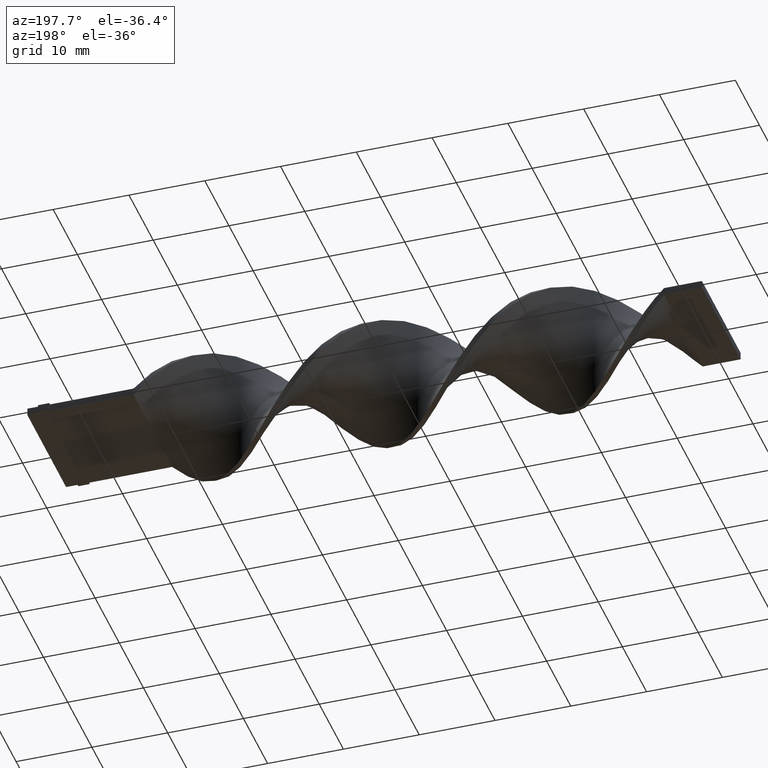
[diagram: clean part render]
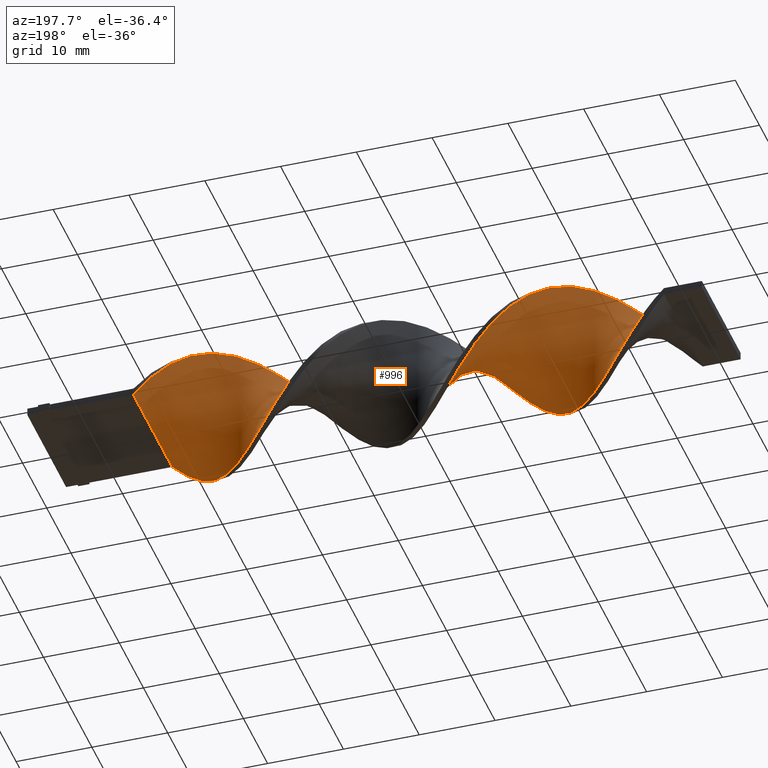
[diagram: same view with one face highlighted and labeled with its STEP entity id]
A machine part, auxiliary view. The second image highlights one B-rep face of the part: STEP entity #996.
In plain terms, the highlighted face is a freeform B-spline surface patch.
Its self-contained STEP definition (entity closure, byte-faithful):
#4 = CARTESIAN_POINT ( 'NONE',  ( -69.64102564102564941, -2.369330974997580164, -7.657432385004585562 ) ) ;
#5 = CARTESIAN_POINT ( 'NONE',  ( -44.51282051282051100, -4.956009906796077225, -6.299838553783672523 ) ) ;
#6 =( BOUNDED_CURVE ( )  B_SPLINE_CURVE ( 2, ( #1060, #1177, #458, #1305, #667, #1043, #75, #1443, #1298, #930, #185, #1552, #1533, #685, #1412, #180, #940, #296, #331, #1546, #679, #814, #1189, #1049, #62, #790, #574, #1055, #310, #1311, #49, #795, #1560, #1293, #175, #920, #1422, #1318, #1181, #557, #68, #444, #663, #449, #925, #799, #566, #320, #1196, #546, #805, #1072, #1240, #695, #95, #1215, #726, #593, #237, #1226, #972, #228, #1205, #734, #827, #707, #352, #102, #1603, #471, #1339, #119, #848, #580, #1092, #1460, #863, #857, #1120 ),
 .UNSPECIFIED., .F., .T. ) 
 B_SPLINE_CURVE_WITH_KNOTS ( ( 3, 2, 2, 2, 2, 2, 2, 2, 2, 2, 2, 2, 2, 2, 2, 2, 2, 2, 2, 2, 2, 2, 2, 2, 2, 2, 2, 2, 2, 2, 2, 2, 2, 2, 2, 2, 2, 2, 2, 3 ),
 ( 0.000000000000000000, 0.01923076923076923184, 0.03846153846153846367, 0.05769230769230768857, 0.07692307692307692735, 0.09615384615384615918, 0.1153846153846153771, 0.1346153846153846090, 0.1538461538461538547, 0.1730769230769230449, 0.1923076923076923184, 0.2115384615384615363, 0.2307692307692307543, 0.2500000000000000000, 0.2692307692307692180, 0.2884615384615384359, 0.3076923076923077094, 0.3269230769230769273, 0.3461538461538460898, 0.3653846153846153633, 0.3846153846153846367, 0.4038461538461539102, 0.4230769230769230727, 0.4423076923076922906, 0.4615384615384615086, 0.4807692307692307820, 0.5000000000000000000, 0.5192307692307692735, 0.5384615384615384359, 0.5576923076923077094, 0.5769230769230768718, 0.5961538461538461453, 0.6153846153846154188, 0.6346153846153845812, 0.6538461538461538547, 0.6730769230769230171, 0.6923076923076921796, 0.7115384615384615641, 0.7307692307692307265, 0.7500000000000000000 ),
 .UNSPECIFIED. ) 
 CURVE ( )  GEOMETRIC_REPRESENTATION_ITEM ( )  RATIONAL_B_SPLINE_CURVE ( ( 1.000000000000000000, 0.9927088740980539727, 1.000000000000000000, 0.9927088740980539727, 1.000000000000000000, 0.9927088740980539727, 1.000000000000000000, 0.9927088740980539727, 1.000000000000000000, 0.9927088740980539727, 1.000000000000000000, 0.9927088740980539727, 1.000000000000000000, 0.9927088740980539727, 1.000000000000000000, 0.9927088740980539727, 1.000000000000000000, 0.9927088740980539727, 1.000000000000000000, 0.9927088740980539727, 1.000000000000000000, 0.9927088740980539727, 1.000000000000000000, 0.9927088740980539727, 1.000000000000000000, 0.9927088740980539727, 1.000000000000000000, 0.9927088740980539727, 1.000000000000000000, 0.9927088740980539727, 1.000000000000000000, 0.9927088740980539727, 1.000000000000000000, 0.9927088740980539727, 1.000000000000000000, 0.9927088740980539727, 1.000000000000000000, 0.9927088740980539727, 1.000000000000000000, 0.9927088740980539727, 1.000000000000000000, 0.9927088740980539727, 1.000000000000000000, 0.9927088740980539727, 1.000000000000000000, 0.9927088740980539727, 1.000000000000000000, 0.9927088740980539727, 1.000000000000000000, 0.9927088740980539727, 1.000000000000000000, 0.9927088740980539727, 1.000000000000000000, 0.9927088740980539727, 1.000000000000000000, 0.9927088740980539727, 1.000000000000000000, 0.9927088740980539727, 1.000000000000000000, 0.9927088740980539727, 1.000000000000000000, 0.9927088740980539727, 1.000000000000000000, 0.9927088740980539727, 1.000000000000000000, 0.9927088740980539727, 1.000000000000000000, 0.9927088740980539727, 1.000000000000000000, 0.9927088740980539727, 1.000000000000000000, 0.9927088740980539727, 1.000000000000000000, 0.9927088740980539727, 1.000000000000000000, 0.9927088740980539727, 1.000000000000000000, 0.9927088740980539727, 1.000000000000000000 ) ) 
 REPRESENTATION_ITEM ( '' )  );
#15 = CARTESIAN_POINT ( 'NONE',  ( -67.84615384615385381, 4.956009906796073672, 6.299838553783672523 ) ) ;
#24 = CARTESIAN_POINT ( 'NONE',  ( -64.25641025641024839, -6.851286619203796668, -4.160513389176752952 ) ) ;
#25 = CARTESIAN_POINT ( 'NONE',  ( -84.00000000000000000, -8.000000000000001776, 0.5000000000000009992 ) ) ;
#31 = CARTESIAN_POINT ( 'NONE',  ( -72.33333333333332860, 0.5036723384328395392, -8.058757414925462825 ) ) ;
#33 = CARTESIAN_POINT ( 'NONE',  ( -78.61538461538461320, -5.656524656248411276, 5.679236640011914083 ) ) ;
#39 = CARTESIAN_POINT ( 'NONE',  ( -76.82051282051281760, 4.956009906796071895, -6.299838553783673412 ) ) ;
#49 = CARTESIAN_POINT ( 'NONE',  ( -40.92307692307691980, 6.851286619203793116, 4.160513389176752952 ) ) ;
#59 = CARTESIAN_POINT ( 'NONE',  ( -51.69230769230769340, 2.369330974997576167, -7.657432385004586450 ) ) ;
#62 = CARTESIAN_POINT ( 'NONE',  ( -35.53846153846153300, 7.887192371552193215, -1.429054405587439014 ) ) ;
#65 = CARTESIAN_POINT ( 'NONE',  ( -19.38461538461538325, 6.319647314489206025, 4.930725891840810782 ) ) ;
#68 = CARTESIAN_POINT ( 'NONE',  ( -49.89743589743589069, -1.460647879091607093, 7.881402652656771757 ) ) ;
#70 = CARTESIAN_POINT ( 'NONE',  ( -31.05128205128205821, -4.966940480229637522, 6.366063081919212330 ) ) ;
#75 = CARTESIAN_POINT ( 'NONE',  ( -19.38461538461538325, -5.656524656248413940, -5.679236640011911419 ) ) ;
#77 = CARTESIAN_POINT ( 'NONE',  ( -42.71794871794872250, -6.319647314489210466, -4.930725891840809894 ) ) ;
#88 = CARTESIAN_POINT ( 'NONE',  ( -62.46153846153845990, 7.887192371552193215, 1.429054405587435905 ) ) ;
#95 = CARTESIAN_POINT ( 'NONE',  ( -62.46153846153845990, -7.647876707264638974, -2.399996223013487917 ) ) ;
#97 = CARTESIAN_POINT ( 'NONE',  ( -82.20512820512820440, -7.647876707264638085, 2.399996223013490582 ) ) ;
#98 = CARTESIAN_POINT ( 'NONE',  ( -22.07692307692308020, 4.191071015615603024, 6.901607105536022857 ) ) ;
#102 = CARTESIAN_POINT ( 'NONE',  ( -74.12820512820510999, 2.417623419750379643, -7.704047890388078912 ) ) ;
#106 = CARTESIAN_POINT ( 'NONE',  ( -66.05128205128204399, 6.319647314489206025, 4.930725891840810782 ) ) ;
#107 = CARTESIAN_POINT ( 'NONE',  ( -22.97435897435897090, 3.304347217682992444, 7.302827497962049996 ) ) ;
#113 = CARTESIAN_POINT ( 'NONE',  ( -44.51282051282051100, 4.133026040902417542, 6.867903300514829112 ) ) ;
#114 = CARTESIAN_POINT ( 'NONE',  ( -40.92307692307691980, -7.316009791247564564, -3.275057363523542264 ) ) ;
#119 = CARTESIAN_POINT ( 'NONE',  ( -77.71794871794874382, 5.720948797976543432, -5.698070002031325743 ) ) ;
#122 = CARTESIAN_POINT ( 'NONE',  ( -47.20512820512820440, 1.439550348419954995, 7.945121250898724341 ) ) ;
#123 = CARTESIAN_POINT ( 'NONE',  ( -57.07692307692307310, 6.851286619203790451, -4.160513389176759169 ) ) ;
#125 = CARTESIAN_POINT ( 'NONE',  ( -13.99999999999999822, 7.999999999999998224, -0.5000000000000000000 ) ) ;
#129 = CARTESIAN_POINT ( 'NONE',  ( -37.33333333333332860, 7.999999999999998224, 0.4999999999999990563 ) ) ;
#135 = CARTESIAN_POINT ( 'NONE',  ( -80.41025641025640880, 7.316009791247561012, -3.275057363523544041 ) ) ;
#144 = CARTESIAN_POINT ( 'NONE',  ( -84.00000000000000000, 7.999999999999998224, 0.4999999999999990563 ) ) ;
#151 = CARTESIAN_POINT ( 'NONE',  ( -13.99999999999999645, -8.000000000000001776, -0.5000000000000000000 ) ) ;
#158 = CARTESIAN_POINT ( 'NONE',  ( -65.15384615384614619, -6.346108832267186806, -4.992410198104614061 ) ) ;
#160 = CARTESIAN_POINT ( 'NONE',  ( -81.30769230769232081, -7.356464406140405643, 3.328616580248894508 ) ) ;
#162 =( BOUNDED_CURVE ( )  B_SPLINE_CURVE ( 2, ( #860, #1099, #1109, #738, #232, #842, #1465, #1587, #988, #98, #107, #490, #1361, #484, #1487, #240, #720, #1237, #1346, #373, #1124, #1245, #1597, #225, #853, #509, #1219, #1353, #1500, #627, #114, #390, #1336, #979, #5, #596, #1231, #603, #1479, #366, #1132, #381, #712, #610, #213, #1118, #1607, #495, #123, #619, #1613, #501, #994, #1492, #866, #1370, #250, #749, #1254, #1018, #15, #169, #634, #893, #291, #1378, #764, #267, #1402, #1268, #907, #275, #33, #1408, #525, #160, #1009, #1509, #900 ),
 .UNSPECIFIED., .F., .T. ) 
 B_SPLINE_CURVE_WITH_KNOTS ( ( 3, 2, 2, 2, 2, 2, 2, 2, 2, 2, 2, 2, 2, 2, 2, 2, 2, 2, 2, 2, 2, 2, 2, 2, 2, 2, 2, 2, 2, 2, 2, 2, 2, 2, 2, 2, 2, 2, 2, 3 ),
 ( 0.000000000000000000, 0.01923076923076923184, 0.03846153846153846367, 0.05769230769230768857, 0.07692307692307692735, 0.09615384615384615918, 0.1153846153846153771, 0.1346153846153846090, 0.1538461538461538547, 0.1730769230769230449, 0.1923076923076923184, 0.2115384615384615363, 0.2307692307692307543, 0.2500000000000000000, 0.2692307692307692180, 0.2884615384615384359, 0.3076923076923077094, 0.3269230769230769273, 0.3461538461538460898, 0.3653846153846153633, 0.3846153846153846367, 0.4038461538461539102, 0.4230769230769230727, 0.4423076923076922906, 0.4615384615384615086, 0.4807692307692307820, 0.5000000000000000000, 0.5192307692307692735, 0.5384615384615384359, 0.5576923076923077094, 0.5769230769230768718, 0.5961538461538461453, 0.6153846153846154188, 0.6346153846153845812, 0.6538461538461538547, 0.6730769230769230171, 0.6923076923076921796, 0.7115384615384615641, 0.7307692307692307265, 0.7500000000000000000 ),
 .UNSPECIFIED. ) 
 CURVE ( )  GEOMETRIC_REPRESENTATION_ITEM ( )  RATIONAL_B_SPLINE_CURVE ( ( 1.000000000000000000, 0.9927088740980539727, 1.000000000000000000, 0.9927088740980539727, 1.000000000000000000, 0.9927088740980539727, 1.000000000000000000, 0.9927088740980539727, 1.000000000000000000, 0.9927088740980539727, 1.000000000000000000, 0.9927088740980539727, 1.000000000000000000, 0.9927088740980539727, 1.000000000000000000, 0.9927088740980539727, 1.000000000000000000, 0.9927088740980539727, 1.000000000000000000, 0.9927088740980539727, 1.000000000000000000, 0.9927088740980539727, 1.000000000000000000, 0.9927088740980539727, 1.000000000000000000, 0.9927088740980539727, 1.000000000000000000, 0.9927088740980539727, 1.000000000000000000, 0.9927088740980539727, 1.000000000000000000, 0.9927088740980539727, 1.000000000000000000, 0.9927088740980539727, 1.000000000000000000, 0.9927088740980539727, 1.000000000000000000, 0.9927088740980539727, 1.000000000000000000, 0.9927088740980539727, 1.000000000000000000, 0.9927088740980539727, 1.000000000000000000, 0.9927088740980539727, 1.000000000000000000, 0.9927088740980539727, 1.000000000000000000, 0.9927088740980539727, 1.000000000000000000, 0.9927088740980539727, 1.000000000000000000, 0.9927088740980539727, 1.000000000000000000, 0.9927088740980539727, 1.000000000000000000, 0.9927088740980539727, 1.000000000000000000, 0.9927088740980539727, 1.000000000000000000, 0.9927088740980539727, 1.000000000000000000, 0.9927088740980539727, 1.000000000000000000, 0.9927088740980539727, 1.000000000000000000, 0.9927088740980539727, 1.000000000000000000, 0.9927088740980539727, 1.000000000000000000, 0.9927088740980539727, 1.000000000000000000, 0.9927088740980539727, 1.000000000000000000, 0.9927088740980539727, 1.000000000000000000, 0.9927088740980539727, 1.000000000000000000, 0.9927088740980539727, 1.000000000000000000 ) ) 
 REPRESENTATION_ITEM ( '' )  );
#169 = CARTESIAN_POINT ( 'NONE',  ( -68.74358974358973740, 4.191071015615603024, 6.901607105536022857 ) ) ;
#175 = CARTESIAN_POINT ( 'NONE',  ( -44.51282051282051100, 4.133026040902417542, 6.867903300514829112 ) ) ;
#177 = CARTESIAN_POINT ( 'NONE',  ( -24.76923076923076650, 1.460647879091611312, 7.881402652656771757 ) ) ;
#180 = CARTESIAN_POINT ( 'NONE',  ( -27.46153846153846345, 2.417623419750379643, -7.704047890388078912 ) ) ;
#182 = CARTESIAN_POINT ( 'NONE',  ( -25.66666666666666785, 0.5036723384328404274, 8.058757414925462825 ) ) ;
#185 = CARTESIAN_POINT ( 'NONE',  ( -22.97435897435897090, -2.369330974997580164, -7.657432385004585562 ) ) ;
#187 = CARTESIAN_POINT ( 'NONE',  ( -43.61538461538461320, -5.720948797976550537, -5.698070002031321302 ) ) ;
#195 = CARTESIAN_POINT ( 'NONE',  ( -37.33333333333332860, -8.000000000000001776, 0.5000000000000009992 ) ) ;
#204 = CARTESIAN_POINT ( 'NONE',  ( -49.00000000000000711, -0.5036723384328444242, -8.058757414925462825 ) ) ;
#211 = CARTESIAN_POINT ( 'NONE',  ( -75.92307692307693401, -3.299111601575199781, 7.369743519110448560 ) ) ;
#213 = CARTESIAN_POINT ( 'NONE',  ( -53.48717948717948900, 4.133026040902414877, -6.867903300514830889 ) ) ;
#223 = CARTESIAN_POINT ( 'NONE',  ( -22.07692307692308376, -3.299111601575200670, -7.369743519110448560 ) ) ;
#225 = CARTESIAN_POINT ( 'NONE',  ( -34.64102564102564230, -7.356464406140405643, 3.328616580248894508 ) ) ;
#228 = CARTESIAN_POINT ( 'NONE',  ( -68.74358974358973740, -3.299111601575200670, -7.369743519110448560 ) ) ;
#231 = CARTESIAN_POINT ( 'NONE',  ( -42.71794871794872250, 5.656524656248411276, 5.679236640011910531 ) ) ;
#232 = CARTESIAN_POINT ( 'NONE',  ( -17.58974358974358765, 7.316009791247561012, 3.275057363523542708 ) ) ;
#237 = CARTESIAN_POINT ( 'NONE',  ( -66.05128205128204399, -5.656524656248413940, -5.679236640011911419 ) ) ;
#239 = CARTESIAN_POINT ( 'NONE',  ( -29.25641025641025905, 4.191071015615602136, -6.901607105536023745 ) ) ;
#240 = CARTESIAN_POINT ( 'NONE',  ( -27.46153846153846345, -1.439550348419957437, 7.945121250898725229 ) ) ;
#248 = CARTESIAN_POINT ( 'NONE',  ( -22.97435897435897090, -2.369330974997580164, -7.657432385004585562 ) ) ;
#250 = CARTESIAN_POINT ( 'NONE',  ( -64.25641025641024839, 7.316009791247561012, 3.275057363523542708 ) ) ;
#257 = CARTESIAN_POINT ( 'NONE',  ( -66.94871794871794179, -4.966940480229640187, -6.366063081919210553 ) ) ;
#259 = VERTEX_POINT ( 'NONE', #1579 ) ;
#266 = CARTESIAN_POINT ( 'NONE',  ( -73.23076923076924061, 1.460647879091608647, -7.881402652656771757 ) ) ;
#267 = CARTESIAN_POINT ( 'NONE',  ( -74.12820512820510999, -1.439550348419957437, 7.945121250898725229 ) ) ;
#273 = CARTESIAN_POINT ( 'NONE',  ( -75.92307692307693401, 4.191071015615602136, -6.901607105536023745 ) ) ;
#275 = CARTESIAN_POINT ( 'NONE',  ( -77.71794871794874382, -4.966940480229637522, 6.366063081919211442 ) ) ;
#281 = CARTESIAN_POINT ( 'NONE',  ( -57.07692307692307310, -7.316009791247561900, 3.275057363523548926 ) ) ;
#288 = CARTESIAN_POINT ( 'NONE',  ( -59.76923076923077360, -8.060710991611131249, 0.4713758657780888761 ) ) ;
#291 = CARTESIAN_POINT ( 'NONE',  ( -71.43589743589743080, 1.460647879091611312, 7.881402652656771757 ) ) ;
#296 = CARTESIAN_POINT ( 'NONE',  ( -29.25641025641025905, 4.191071015615602136, -6.901607105536022857 ) ) ;
#299 = CARTESIAN_POINT ( 'NONE',  ( -61.56410256410256920, 8.060710991611127696, 0.4713758657780842132 ) ) ;
#307 = CARTESIAN_POINT ( 'NONE',  ( -38.23076923076922640, -8.060710991611131249, -0.4713758657780824923 ) ) ;
#310 = CARTESIAN_POINT ( 'NONE',  ( -39.12820512820512420, 7.647876707264636309, 2.399996223013485697 ) ) ;
#313 = CARTESIAN_POINT ( 'NONE',  ( -39.12820512820512420, -7.887192371552196768, -1.429054405587433463 ) ) ;
#320 = CARTESIAN_POINT ( 'NONE',  ( -56.17948717948717530, -6.918345831001868618, 4.163381781650300262 ) ) ;
#324 = CARTESIAN_POINT ( 'NONE',  ( -34.64102564102564230, -7.356464406140407419, 3.328616580248894952 ) ) ;
#331 = CARTESIAN_POINT ( 'NONE',  ( -30.15384615384615330, 4.956009906796071895, -6.299838553783673412 ) ) ;
#336 = CARTESIAN_POINT ( 'NONE',  ( -56.17948717948717530, 6.346108832267182365, -4.992410198104615837 ) ) ;
#346 = CARTESIAN_POINT ( 'NONE',  ( -71.43589743589743080, 1.460647879091611312, 7.881402652656771757 ) ) ;
#352 = CARTESIAN_POINT ( 'NONE',  ( -73.23076923076924061, 1.460647879091608647, -7.881402652656771757 ) ) ;
#355 = CARTESIAN_POINT ( 'NONE',  ( -16.69230769230769695, -7.356464406140408308, -3.328616580248892287 ) ) ;
#365 = CARTESIAN_POINT ( 'NONE',  ( -40.92307692307691980, 6.851286619203793116, 4.160513389176752952 ) ) ;
#366 = CARTESIAN_POINT ( 'NONE',  ( -49.00000000000000000, -0.5036723384328445352, -8.058757414925462825 ) ) ;
#372 = CARTESIAN_POINT ( 'NONE',  ( -77.71794871794872961, -4.966940480229637522, 6.366063081919212330 ) ) ;
#373 = CARTESIAN_POINT ( 'NONE',  ( -31.05128205128205465, -4.966940480229637522, 6.366063081919211442 ) ) ;
#380 = CARTESIAN_POINT ( 'NONE',  ( -84.00000000000000000, -8.000000000000001776, 0.5000000000000009992 ) ) ;
#381 = CARTESIAN_POINT ( 'NONE',  ( -50.79487179487178850, 1.439550348419951442, -7.945121250898727006 ) ) ;
#388 = CARTESIAN_POINT ( 'NONE',  ( -62.46153846153845990, -7.647876707264638974, -2.399996223013487917 ) ) ;
#390 = CARTESIAN_POINT ( 'NONE',  ( -41.82051282051281760, -6.918345831001870394, -4.163381781650297597 ) ) ;
#396 = CARTESIAN_POINT ( 'NONE',  ( -52.58974358974358410, -4.191071015615600359, 6.901607105536026410 ) ) ;
#405 = CARTESIAN_POINT ( 'NONE',  ( -84.00000000000000000, -2.666666666666668739, 0.5000000000000003331 ) ) ;
#413 = CARTESIAN_POINT ( 'NONE',  ( -60.66666666666666430, -8.000000000000001776, -0.5000000000000000000 ) ) ;
#420 = CARTESIAN_POINT ( 'NONE',  ( -66.05128205128204399, -5.656524656248413940, -5.679236640011911419 ) ) ;
#433 = CARTESIAN_POINT ( 'NONE',  ( -64.25641025641024839, 7.316009791247561012, 3.275057363523542708 ) ) ;
#439 = CARTESIAN_POINT ( 'NONE',  ( -29.25641025641025905, -3.299111601575199781, 7.369743519110448560 ) ) ;
#444 = CARTESIAN_POINT ( 'NONE',  ( -50.79487179487178850, -2.417623419750380087, 7.704047890388080688 ) ) ;
#449 = CARTESIAN_POINT ( 'NONE',  ( -52.58974358974359120, -4.191071015615600359, 6.901607105536025522 ) ) ;
#452 = CARTESIAN_POINT ( 'NONE',  ( -22.97435897435897090, 3.304347217682992444, 7.302827497962049996 ) ) ;
#458 = CARTESIAN_POINT ( 'NONE',  ( -15.79487179487179205, -7.647876707264638974, -2.399996223013487917 ) ) ;
#462 = CARTESIAN_POINT ( 'NONE',  ( -15.79487179487179205, 7.887192371552193215, 1.429054405587435905 ) ) ;
#471 = CARTESIAN_POINT ( 'NONE',  ( -75.92307692307691980, 4.191071015615602136, -6.901607105536022857 ) ) ;
#474 = CARTESIAN_POINT ( 'NONE',  ( -50.79487179487178850, -2.417623419750380087, 7.704047890388079800 ) ) ;
#478 = B_SPLINE_CURVE_WITH_KNOTS ( 'NONE', 3,
 ( #25, #405, #771, #1275 ),
 .UNSPECIFIED., .F., .F.,
 ( 4, 4 ),
 ( 0.000000000000000000, 1.000000000000000000 ),
 .UNSPECIFIED. ) ;
#482 = CARTESIAN_POINT ( 'NONE',  ( -78.61538461538461320, -5.656524656248411276, 5.679236640011914083 ) ) ;
#484 = CARTESIAN_POINT ( 'NONE',  ( -25.66666666666666785, 0.5036723384328405384, 8.058757414925462825 ) ) ;
#489 = CARTESIAN_POINT ( 'NONE',  ( -34.64102564102564230, 7.713673751493258735, -2.386732945396789596 ) ) ;
#490 = CARTESIAN_POINT ( 'NONE',  ( -23.87179487179487580, 2.417623419750380531, 7.704047890388078024 ) ) ;
#494 = CARTESIAN_POINT ( 'NONE',  ( -17.58974358974358765, -6.851286619203796668, -4.160513389176752952 ) ) ;
#495 = CARTESIAN_POINT ( 'NONE',  ( -56.17948717948717530, 6.346108832267182365, -4.992410198104615837 ) ) ;
#500 = CARTESIAN_POINT ( 'NONE',  ( -43.61538461538461320, 4.966940480229639299, 6.366063081919208777 ) ) ;
#501 = CARTESIAN_POINT ( 'NONE',  ( -59.76923076923076650, 7.939289008388867863, -1.471375865778089098 ) ) ;
#509 = CARTESIAN_POINT ( 'NONE',  ( -36.43589743589743790, -7.939289008388871416, 1.471375865778087988 ) ) ;
#517 = CARTESIAN_POINT ( 'NONE',  ( -61.56410256410256920, -7.939289008388871416, -1.471375865778084213 ) ) ;
#523 = CARTESIAN_POINT ( 'NONE',  ( -51.69230769230769340, -3.304347217682993332, 7.302827497962050884 ) ) ;
#525 = CARTESIAN_POINT ( 'NONE',  ( -80.41025641025640880, -6.851286619203795780, 4.160513389176754728 ) ) ;
#538 = CARTESIAN_POINT ( 'NONE',  ( -68.74358974358973740, -3.299111601575200670, -7.369743519110448560 ) ) ;
#546 = CARTESIAN_POINT ( 'NONE',  ( -57.97435897435897090, -7.713673751493261399, 2.386732945396790928 ) ) ;
#553 = CARTESIAN_POINT ( 'NONE',  ( -21.17948717948717885, 4.956009906796073672, 6.299838553783672523 ) ) ;
#557 = CARTESIAN_POINT ( 'NONE',  ( -49.00000000000000000, -0.5036723384328414266, 8.058757414925462825 ) ) ;
#561 = CARTESIAN_POINT ( 'NONE',  ( -49.89743589743589069, 0.4679390049935500673, -8.001939332912092695 ) ) ;
#566 = CARTESIAN_POINT ( 'NONE',  ( -55.28205128205128460, -6.319647314489206025, 4.930725891840814334 ) ) ;
#569 = CARTESIAN_POINT ( 'NONE',  ( -36.43589743589743790, -7.939289008388871416, 1.471375865778087988 ) ) ;
#574 = CARTESIAN_POINT ( 'NONE',  ( -37.33333333333332860, 7.999999999999998224, 0.4999999999999990563 ) ) ;
#580 = CARTESIAN_POINT ( 'NONE',  ( -79.51282051282051100, 6.918345831001865065, -4.163381781650299374 ) ) ;
#584 = CARTESIAN_POINT ( 'NONE',  ( -63.35897435897435770, 7.713673751493258735, 2.386732945396786931 ) ) ;
#593 = CARTESIAN_POINT ( 'NONE',  ( -65.15384615384614619, -6.346108832267186806, -4.992410198104614061 ) ) ;
#595 = CARTESIAN_POINT ( 'NONE',  ( -83.10256410256410220, -7.939289008388871416, 1.471375865778087988 ) ) ;
#596 = CARTESIAN_POINT ( 'NONE',  ( -45.41025641025640880, -4.191071015615609241, -6.901607105536020192 ) ) ;
#602 = CARTESIAN_POINT ( 'NONE',  ( -28.35897435897435770, 3.304347217682989779, -7.302827497962051773 ) ) ;
#603 = CARTESIAN_POINT ( 'NONE',  ( -47.20512820512820440, -2.417623419750382752, -7.704047890388078912 ) ) ;
#608 = CARTESIAN_POINT ( 'NONE',  ( -80.41025641025640880, -6.851286619203795780, 4.160513389176754728 ) ) ;
#610 = CARTESIAN_POINT ( 'NONE',  ( -52.58974358974359120, 3.299111601575193120, -7.369743519110449448 ) ) ;
#615 = CARTESIAN_POINT ( 'NONE',  ( -13.99999999999999822, 7.999999999999998224, -0.5000000000000000000 ) ) ;
#617 = CARTESIAN_POINT ( 'NONE',  ( -48.10256410256410220, 0.4679390049935600593, 8.001939332912094471 ) ) ;
#619 = CARTESIAN_POINT ( 'NONE',  ( -57.97435897435897090, 7.356464406140403867, -3.328616580248895396 ) ) ;
#626 = CARTESIAN_POINT ( 'NONE',  ( -46.30769230769230660, 2.369330974997578387, 7.657432385004585562 ) ) ;
#627 = CARTESIAN_POINT ( 'NONE',  ( -40.02564102564102200, -7.713673751493263175, -2.386732945396784711 ) ) ;
#629 = EDGE_CURVE ( 'NONE', #1265, #1121, #1348, .T. ) ;
#634 = CARTESIAN_POINT ( 'NONE',  ( -69.64102564102564941, 3.304347217682992444, 7.302827497962049996 ) ) ;
#649 = CARTESIAN_POINT ( 'NONE',  ( -82.20512820512820440, 7.887192371552193215, -1.429054405587439014 ) ) ;
#663 = CARTESIAN_POINT ( 'NONE',  ( -51.69230769230769340, -3.304347217682993332, 7.302827497962050884 ) ) ;
#667 = CARTESIAN_POINT ( 'NONE',  ( -17.58974358974358765, -6.851286619203796668, -4.160513389176752952 ) ) ;
#669 = CARTESIAN_POINT ( 'NONE',  ( -30.15384615384615330, -4.133026040902419318, 6.867903300514830001 ) ) ;
#679 = CARTESIAN_POINT ( 'NONE',  ( -31.94871794871794535, 6.319647314489203360, -4.930725891840813446 ) ) ;
#682 = CARTESIAN_POINT ( 'NONE',  ( -57.07692307692307310, 6.851286619203790451, -4.160513389176759169 ) ) ;
#685 = CARTESIAN_POINT ( 'NONE',  ( -25.66666666666666785, 0.5036723384328395392, -8.058757414925462825 ) ) ;
#688 = CARTESIAN_POINT ( 'NONE',  ( -40.92307692307691980, -7.316009791247564564, -3.275057363523542264 ) ) ;
#695 = CARTESIAN_POINT ( 'NONE',  ( -61.56410256410256920, -7.939289008388871416, -1.471375865778084213 ) ) ;
#699 = CARTESIAN_POINT ( 'NONE',  ( -59.76923076923077360, 7.939289008388867863, -1.471375865778089098 ) ) ;
#707 = CARTESIAN_POINT ( 'NONE',  ( -72.33333333333332860, 0.5036723384328395392, -8.058757414925462825 ) ) ;
#709 = CARTESIAN_POINT ( 'NONE',  ( -72.33333333333332860, 0.5036723384328404274, 8.058757414925462825 ) ) ;
#712 = CARTESIAN_POINT ( 'NONE',  ( -51.69230769230769340, 2.369330974997576167, -7.657432385004586450 ) ) ;
#713 =( BOUNDED_SURFACE ( )  B_SPLINE_SURFACE ( 1, 2, ( 
 ( #934, #1424, #462, #1430, #1193, #945, #65, #1314, #553, #1051, #452, #1554, #177, #182, #1436, #927, #1542, #439, #669, #70, #792, #797, #1183, #324, #1179, #569, #195, #307, #313, #922, #688, #1199, #77, #187, #1548, #820, #914, #1075, #1088, #204, #561, #1295, #59, #1446, #1057, #1563, #801, #336, #682, #1307, #1323, #699, #1208, #299, #88, #584, #433, #737, #106, #954, #1455, #1344, #829, #1218, #346, #709, #1334, #1605, #1491, #211, #729, #372, #482, #1368, #608, #1585, #97, #595, #380 ),
 ( #1096, #964, #1463, #355, #494, #865, #837, #1235, #859, #223, #248, #1116, #718, #1229, #993, #748, #602, #239, #987, #1360, #1108, #1612, #1594, #489, #1252, #976, #129, #851, #1486, #1478, #365, #1351, #231, #500, #113, #1242, #626, #122, #617, #1123, #1574, #474, #523, #396, #1391, #884, #1140, #763, #281, #1385, #873, #288, #413, #517, #388, #1375, #24, #158, #420, #257, #1147, #538, #4, #1007, #1508, #31, #266, #1159, #1016, #273, #39, #1267, #899, #1259, #135, #1151, #649, #757, #144 ) ),
 .UNSPECIFIED., .F., .F., .F. ) 
 B_SPLINE_SURFACE_WITH_KNOTS ( ( 2, 2 ),
 ( 3, 2, 2, 2, 2, 2, 2, 2, 2, 2, 2, 2, 2, 2, 2, 2, 2, 2, 2, 2, 2, 2, 2, 2, 2, 2, 2, 2, 2, 2, 2, 2, 2, 2, 2, 2, 2, 2, 2, 3 ),
 ( 0.000000000000000000, 1.000000000000000000 ),
 ( 0.000000000000000000, 0.01923076923076923184, 0.03846153846153846367, 0.05769230769230769551, 0.07692307692307692735, 0.09615384615384615918, 0.1153846153846153910, 0.1346153846153846090, 0.1538461538461538547, 0.1730769230769230727, 0.1923076923076923184, 0.2115384615384615363, 0.2307692307692307820, 0.2500000000000000000, 0.2692307692307692180, 0.2884615384615384359, 0.3076923076923077094, 0.3269230769230769273, 0.3461538461538461453, 0.3653846153846153633, 0.3846153846153846367, 0.4038461538461538547, 0.4230769230769230727, 0.4423076923076922906, 0.4615384615384615641, 0.4807692307692307820, 0.5000000000000000000, 0.5192307692307692735, 0.5384615384615384359, 0.5576923076923077094, 0.5769230769230768718, 0.5961538461538461453, 0.6153846153846154188, 0.6346153846153845812, 0.6538461538461538547, 0.6730769230769231282, 0.6923076923076922906, 0.7115384615384615641, 0.7307692307692307265, 0.7500000000000000000 ),
 .UNSPECIFIED. ) 
 GEOMETRIC_REPRESENTATION_ITEM ( )  RATIONAL_B_SPLINE_SURFACE ( (
 ( 1.000000000000000000, 0.9927088740980539727, 1.000000000000000000, 0.9927088740980539727, 1.000000000000000000, 0.9927088740980539727, 1.000000000000000000, 0.9927088740980539727, 1.000000000000000000, 0.9927088740980539727, 1.000000000000000000, 0.9927088740980539727, 1.000000000000000000, 0.9927088740980539727, 1.000000000000000000, 0.9927088740980539727, 1.000000000000000000, 0.9927088740980539727, 1.000000000000000000, 0.9927088740980539727, 1.000000000000000000, 0.9927088740980539727, 1.000000000000000000, 0.9927088740980539727, 1.000000000000000000, 0.9927088740980539727, 1.000000000000000000, 0.9927088740980539727, 1.000000000000000000, 0.9927088740980539727, 1.000000000000000000, 0.9927088740980539727, 1.000000000000000000, 0.9927088740980539727, 1.000000000000000000, 0.9927088740980539727, 1.000000000000000000, 0.9927088740980539727, 1.000000000000000000, 0.9927088740980539727, 1.000000000000000000, 0.9927088740980539727, 1.000000000000000000, 0.9927088740980539727, 1.000000000000000000, 0.9927088740980539727, 1.000000000000000000, 0.9927088740980539727, 1.000000000000000000, 0.9927088740980539727, 1.000000000000000000, 0.9927088740980539727, 1.000000000000000000, 0.9927088740980539727, 1.000000000000000000, 0.9927088740980539727, 1.000000000000000000, 0.9927088740980539727, 1.000000000000000000, 0.9927088740980539727, 1.000000000000000000, 0.9927088740980539727, 1.000000000000000000, 0.9927088740980539727, 1.000000000000000000, 0.9927088740980539727, 1.000000000000000000, 0.9927088740980539727, 1.000000000000000000, 0.9927088740980539727, 1.000000000000000000, 0.9927088740980539727, 1.000000000000000000, 0.9927088740980539727, 1.000000000000000000, 0.9927088740980539727, 1.000000000000000000, 0.9927088740980539727, 1.000000000000000000),
 ( 1.000000000000000000, 0.9927088740980539727, 1.000000000000000000, 0.9927088740980539727, 1.000000000000000000, 0.9927088740980539727, 1.000000000000000000, 0.9927088740980539727, 1.000000000000000000, 0.9927088740980539727, 1.000000000000000000, 0.9927088740980539727, 1.000000000000000000, 0.9927088740980539727, 1.000000000000000000, 0.9927088740980539727, 1.000000000000000000, 0.9927088740980539727, 1.000000000000000000, 0.9927088740980539727, 1.000000000000000000, 0.9927088740980539727, 1.000000000000000000, 0.9927088740980539727, 1.000000000000000000, 0.9927088740980539727, 1.000000000000000000, 0.9927088740980539727, 1.000000000000000000, 0.9927088740980539727, 1.000000000000000000, 0.9927088740980539727, 1.000000000000000000, 0.9927088740980539727, 1.000000000000000000, 0.9927088740980539727, 1.000000000000000000, 0.9927088740980539727, 1.000000000000000000, 0.9927088740980539727, 1.000000000000000000, 0.9927088740980539727, 1.000000000000000000, 0.9927088740980539727, 1.000000000000000000, 0.9927088740980539727, 1.000000000000000000, 0.9927088740980539727, 1.000000000000000000, 0.9927088740980539727, 1.000000000000000000, 0.9927088740980539727, 1.000000000000000000, 0.9927088740980539727, 1.000000000000000000, 0.9927088740980539727, 1.000000000000000000, 0.9927088740980539727, 1.000000000000000000, 0.9927088740980539727, 1.000000000000000000, 0.9927088740980539727, 1.000000000000000000, 0.9927088740980539727, 1.000000000000000000, 0.9927088740980539727, 1.000000000000000000, 0.9927088740980539727, 1.000000000000000000, 0.9927088740980539727, 1.000000000000000000, 0.9927088740980539727, 1.000000000000000000, 0.9927088740980539727, 1.000000000000000000, 0.9927088740980539727, 1.000000000000000000, 0.9927088740980539727, 1.000000000000000000) ) ) 
 REPRESENTATION_ITEM ( '' )  SURFACE ( )  );
#718 = CARTESIAN_POINT ( 'NONE',  ( -24.76923076923076650, -0.4679390049935603924, -8.001939332912092695 ) ) ;
#720 = CARTESIAN_POINT ( 'NONE',  ( -28.35897435897435770, -2.369330974997577499, 7.657432385004585562 ) ) ;
#725 = EDGE_CURVE ( 'NONE', #1265, #1453, #162, .T. ) ;
#726 = CARTESIAN_POINT ( 'NONE',  ( -64.25641025641024839, -6.851286619203796668, -4.160513389176752952 ) ) ;
#729 = CARTESIAN_POINT ( 'NONE',  ( -76.82051282051281760, -4.133026040902419318, 6.867903300514830001 ) ) ;
#734 = CARTESIAN_POINT ( 'NONE',  ( -70.53846153846153300, -1.439550348419958103, -7.945121250898725229 ) ) ;
#737 = CARTESIAN_POINT ( 'NONE',  ( -65.15384615384614619, 6.918345831001865065, 4.163381781650298485 ) ) ;
#738 = CARTESIAN_POINT ( 'NONE',  ( -16.69230769230769340, 7.713673751493258735, 2.386732945396787375 ) ) ;
#748 = CARTESIAN_POINT ( 'NONE',  ( -27.46153846153846345, 2.417623419750379643, -7.704047890388078024 ) ) ;
#749 = CARTESIAN_POINT ( 'NONE',  ( -65.15384615384614619, 6.918345831001865953, 4.163381781650298485 ) ) ;
#757 = CARTESIAN_POINT ( 'NONE',  ( -83.10256410256410220, 8.060710991611127696, -0.4713758657780879879 ) ) ;
#763 = CARTESIAN_POINT ( 'NONE',  ( -56.17948717948717530, -6.918345831001867730, 4.163381781650300262 ) ) ;
#764 = CARTESIAN_POINT ( 'NONE',  ( -73.23076923076924061, -0.4679390049935575613, 8.001939332912092695 ) ) ;
#771 = CARTESIAN_POINT ( 'NONE',  ( -84.00000000000000000, 2.666666666666665186, 0.4999999999999996669 ) ) ;
#790 = CARTESIAN_POINT ( 'NONE',  ( -36.43589743589743790, 8.060710991611129472, -0.4713758657780879324 ) ) ;
#792 = CARTESIAN_POINT ( 'NONE',  ( -31.94871794871794535, -5.656524656248411276, 5.679236640011914083 ) ) ;
#793 = EDGE_CURVE ( 'NONE', #1453, #259, #478, .T. ) ;
#795 = CARTESIAN_POINT ( 'NONE',  ( -41.82051282051281760, 6.346108832267184141, 4.992410198104613173 ) ) ;
#797 = CARTESIAN_POINT ( 'NONE',  ( -32.84615384615384670, -6.346108832267185917, 4.992410198104614949 ) ) ;
#799 = CARTESIAN_POINT ( 'NONE',  ( -54.38461538461538680, -5.720948797976542544, 5.698070002031327519 ) ) ;
#801 = CARTESIAN_POINT ( 'NONE',  ( -55.28205128205128460, 5.656524656248406835, -5.679236640011914972 ) ) ;
#805 = CARTESIAN_POINT ( 'NONE',  ( -58.87179487179486870, -7.887192371552194992, 1.429054405587443455 ) ) ;
#814 = CARTESIAN_POINT ( 'NONE',  ( -32.84615384615384670, 6.918345831001865065, -4.163381781650299374 ) ) ;
#820 = CARTESIAN_POINT ( 'NONE',  ( -45.41025641025640880, -4.191071015615609241, -6.901607105536021081 ) ) ;
#827 = CARTESIAN_POINT ( 'NONE',  ( -71.43589743589743080, -0.4679390049935603924, -8.001939332912092695 ) ) ;
#829 = CARTESIAN_POINT ( 'NONE',  ( -69.64102564102564941, 3.304347217682992444, 7.302827497962049996 ) ) ;
#835 = CARTESIAN_POINT ( 'NONE',  ( -84.00000000000000000, -8.000000000000001776, 0.5000000000000009992 ) ) ;
#837 = CARTESIAN_POINT ( 'NONE',  ( -19.38461538461538325, -5.656524656248413940, -5.679236640011911419 ) ) ;
#842 = CARTESIAN_POINT ( 'NONE',  ( -18.48717948717948545, 6.918345831001865953, 4.163381781650298485 ) ) ;
#848 = CARTESIAN_POINT ( 'NONE',  ( -78.61538461538461320, 6.319647314489203360, -4.930725891840813446 ) ) ;
#851 = CARTESIAN_POINT ( 'NONE',  ( -38.23076923076922640, 7.939289008388867863, 1.471375865778082659 ) ) ;
#853 = CARTESIAN_POINT ( 'NONE',  ( -35.53846153846153300, -7.647876707264638085, 2.399996223013490582 ) ) ;
#857 = CARTESIAN_POINT ( 'NONE',  ( -83.10256410256410220, 8.060710991611129472, -0.4713758657780879324 ) ) ;
#859 = CARTESIAN_POINT ( 'NONE',  ( -21.17948717948717885, -4.133026040902421094, -6.867903300514829112 ) ) ;
#860 = CARTESIAN_POINT ( 'NONE',  ( -13.99999999999999822, 7.999999999999998224, -0.5000000000000000000 ) ) ;
#863 = CARTESIAN_POINT ( 'NONE',  ( -82.20512820512820440, 7.887192371552193215, -1.429054405587439014 ) ) ;
#865 = CARTESIAN_POINT ( 'NONE',  ( -18.48717948717948545, -6.346108832267186806, -4.992410198104614061 ) ) ;
#866 = CARTESIAN_POINT ( 'NONE',  ( -62.46153846153845990, 7.887192371552193215, 1.429054405587435905 ) ) ;
#873 = CARTESIAN_POINT ( 'NONE',  ( -58.87179487179486870, -7.887192371552194992, 1.429054405587443455 ) ) ;
#884 = CARTESIAN_POINT ( 'NONE',  ( -54.38461538461538680, -5.720948797976542544, 5.698070002031328407 ) ) ;
#893 = CARTESIAN_POINT ( 'NONE',  ( -70.53846153846153300, 2.417623419750380531, 7.704047890388078024 ) ) ;
#899 = CARTESIAN_POINT ( 'NONE',  ( -78.61538461538461320, 6.319647314489203360, -4.930725891840813446 ) ) ;
#900 = CARTESIAN_POINT ( 'NONE',  ( -84.00000000000000000, -8.000000000000001776, 0.5000000000000009992 ) ) ;
#907 = CARTESIAN_POINT ( 'NONE',  ( -76.82051282051281760, -4.133026040902419318, 6.867903300514830001 ) ) ;
#914 = CARTESIAN_POINT ( 'NONE',  ( -46.30769230769230660, -3.304347217682995996, -7.302827497962049996 ) ) ;
#920 = CARTESIAN_POINT ( 'NONE',  ( -45.41025641025640880, 3.299111601575202446, 7.369743519110445895 ) ) ;
#922 = CARTESIAN_POINT ( 'NONE',  ( -40.02564102564102200, -7.713673751493263175, -2.386732945396784711 ) ) ;
#925 = CARTESIAN_POINT ( 'NONE',  ( -53.48717948717948900, -4.956009906796074560, 6.299838553783674300 ) ) ;
#927 = CARTESIAN_POINT ( 'NONE',  ( -27.46153846153846345, -1.439550348419957659, 7.945121250898724341 ) ) ;
#930 = CARTESIAN_POINT ( 'NONE',  ( -22.07692307692308020, -3.299111601575200670, -7.369743519110448560 ) ) ;
#934 = CARTESIAN_POINT ( 'NONE',  ( -13.99999999999999822, 7.999999999999998224, -0.5000000000000000000 ) ) ;
#940 = CARTESIAN_POINT ( 'NONE',  ( -28.35897435897435770, 3.304347217682989779, -7.302827497962051773 ) ) ;
#945 = CARTESIAN_POINT ( 'NONE',  ( -18.48717948717948545, 6.918345831001865065, 4.163381781650298485 ) ) ;
#954 = CARTESIAN_POINT ( 'NONE',  ( -66.94871794871794179, 5.720948797976546096, 5.698070002031323078 ) ) ;
#964 = CARTESIAN_POINT ( 'NONE',  ( -14.89743589743589602, -7.939289008388871416, -1.471375865778084213 ) ) ;
#972 = CARTESIAN_POINT ( 'NONE',  ( -67.84615384615385381, -4.133026040902421094, -6.867903300514829112 ) ) ;
#976 = CARTESIAN_POINT ( 'NONE',  ( -36.43589743589743790, 8.060710991611127696, -0.4713758657780879879 ) ) ;
#979 = CARTESIAN_POINT ( 'NONE',  ( -43.61538461538461320, -5.720948797976550537, -5.698070002031321302 ) ) ;
#987 = CARTESIAN_POINT ( 'NONE',  ( -30.15384615384615330, 4.956009906796071895, -6.299838553783673412 ) ) ;
#988 = CARTESIAN_POINT ( 'NONE',  ( -21.17948717948717885, 4.956009906796073672, 6.299838553783672523 ) ) ;
#993 = CARTESIAN_POINT ( 'NONE',  ( -26.56410256410256210, 1.460647879091608647, -7.881402652656771757 ) ) ;
#994 = CARTESIAN_POINT ( 'NONE',  ( -60.66666666666666430, 7.999999999999998224, -0.5000000000000000000 ) ) ;
#996 = ADVANCED_FACE ( 'NONE', ( #1062 ), #713, .T. ) ;
#1007 = CARTESIAN_POINT ( 'NONE',  ( -70.53846153846153300, -1.439550348419958326, -7.945121250898724341 ) ) ;
#1009 = CARTESIAN_POINT ( 'NONE',  ( -82.20512820512820440, -7.647876707264638085, 2.399996223013490582 ) ) ;
#1016 = CARTESIAN_POINT ( 'NONE',  ( -75.02564102564102200, 3.304347217682989779, -7.302827497962051773 ) ) ;
#1018 = CARTESIAN_POINT ( 'NONE',  ( -66.94871794871795601, 5.720948797976546096, 5.698070002031323078 ) ) ;
#1043 = CARTESIAN_POINT ( 'NONE',  ( -18.48717948717948545, -6.346108832267186806, -4.992410198104614061 ) ) ;
#1049 = CARTESIAN_POINT ( 'NONE',  ( -34.64102564102564230, 7.713673751493257846, -2.386732945396790040 ) ) ;
#1051 = CARTESIAN_POINT ( 'NONE',  ( -22.07692307692308376, 4.191071015615603024, 6.901607105536023745 ) ) ;
#1055 = CARTESIAN_POINT ( 'NONE',  ( -38.23076923076922640, 7.939289008388867863, 1.471375865778082437 ) ) ;
#1057 = CARTESIAN_POINT ( 'NONE',  ( -53.48717948717948900, 4.133026040902414877, -6.867903300514830889 ) ) ;
#1060 = CARTESIAN_POINT ( 'NONE',  ( -13.99999999999999645, -8.000000000000001776, -0.5000000000000000000 ) ) ;
#1062 = FACE_OUTER_BOUND ( 'NONE', #1133, .T. ) ;
#1072 = CARTESIAN_POINT ( 'NONE',  ( -59.76923076923076650, -8.060710991611133025, 0.4713758657780888761 ) ) ;
#1075 = CARTESIAN_POINT ( 'NONE',  ( -47.20512820512820440, -2.417623419750382752, -7.704047890388078024 ) ) ;
#1088 = CARTESIAN_POINT ( 'NONE',  ( -48.10256410256410220, -1.460647879091617085, -7.881402652656769980 ) ) ;
#1092 = CARTESIAN_POINT ( 'NONE',  ( -80.41025641025640880, 7.316009791247561012, -3.275057363523544041 ) ) ;
#1096 = CARTESIAN_POINT ( 'NONE',  ( -13.99999999999999822, -8.000000000000001776, -0.5000000000000000000 ) ) ;
#1099 = CARTESIAN_POINT ( 'NONE',  ( -14.89743589743589602, 8.060710991611129472, 0.4713758657780842132 ) ) ;
#1108 = CARTESIAN_POINT ( 'NONE',  ( -31.94871794871794535, 6.319647314489203360, -4.930725891840813446 ) ) ;
#1109 = CARTESIAN_POINT ( 'NONE',  ( -15.79487179487179205, 7.887192371552193215, 1.429054405587435905 ) ) ;
#1116 = CARTESIAN_POINT ( 'NONE',  ( -23.87179487179487580, -1.439550348419958326, -7.945121250898724341 ) ) ;
#1118 = CARTESIAN_POINT ( 'NONE',  ( -54.38461538461538680, 4.966940480229631305, -6.366063081919214106 ) ) ;
#1120 = CARTESIAN_POINT ( 'NONE',  ( -84.00000000000000000, 7.999999999999998224, 0.4999999999999990563 ) ) ;
#1121 = VERTEX_POINT ( 'NONE', #151 ) ;
#1123 = CARTESIAN_POINT ( 'NONE',  ( -49.00000000000000711, -0.5036723384328414266, 8.058757414925462825 ) ) ;
#1124 = CARTESIAN_POINT ( 'NONE',  ( -31.94871794871794535, -5.656524656248411276, 5.679236640011914083 ) ) ;
#1126 = DIRECTION ( 'NONE',  ( 1.084202172485504434E-16, -1.000000000000000000, 0.000000000000000000 ) ) ;
#1132 = CARTESIAN_POINT ( 'NONE',  ( -49.89743589743589069, 0.4679390049935500673, -8.001939332912092695 ) ) ;
#1133 = EDGE_LOOP ( 'NONE', ( #1372, #1521, #1282, #1352 ) ) ;
#1140 = CARTESIAN_POINT ( 'NONE',  ( -55.28205128205128460, -6.319647314489206025, 4.930725891840814334 ) ) ;
#1147 = CARTESIAN_POINT ( 'NONE',  ( -67.84615384615385381, -4.133026040902421094, -6.867903300514829112 ) ) ;
#1151 = CARTESIAN_POINT ( 'NONE',  ( -81.30769230769233502, 7.713673751493258735, -2.386732945396789596 ) ) ;
#1159 = CARTESIAN_POINT ( 'NONE',  ( -74.12820512820512420, 2.417623419750379643, -7.704047890388078024 ) ) ;
#1164 = VECTOR ( 'NONE', #1126, 1000.000000000000000 ) ;
#1177 = CARTESIAN_POINT ( 'NONE',  ( -14.89743589743589602, -7.939289008388871416, -1.471375865778084213 ) ) ;
#1179 = CARTESIAN_POINT ( 'NONE',  ( -35.53846153846153300, -7.647876707264638085, 2.399996223013490582 ) ) ;
#1181 = CARTESIAN_POINT ( 'NONE',  ( -48.10256410256410220, 0.4679390049935600593, 8.001939332912094471 ) ) ;
#1183 = CARTESIAN_POINT ( 'NONE',  ( -33.74358974358974450, -6.851286619203795780, 4.160513389176754728 ) ) ;
#1189 = CARTESIAN_POINT ( 'NONE',  ( -33.74358974358974450, 7.316009791247561012, -3.275057363523544041 ) ) ;
#1193 = CARTESIAN_POINT ( 'NONE',  ( -17.58974358974358765, 7.316009791247561012, 3.275057363523542708 ) ) ;
#1196 = CARTESIAN_POINT ( 'NONE',  ( -57.07692307692307310, -7.316009791247561900, 3.275057363523548926 ) ) ;
#1199 = CARTESIAN_POINT ( 'NONE',  ( -41.82051282051281760, -6.918345831001869506, -4.163381781650297597 ) ) ;
#1205 = CARTESIAN_POINT ( 'NONE',  ( -69.64102564102564941, -2.369330974997580164, -7.657432385004585562 ) ) ;
#1208 = CARTESIAN_POINT ( 'NONE',  ( -60.66666666666666430, 7.999999999999998224, -0.5000000000000000000 ) ) ;
#1215 = CARTESIAN_POINT ( 'NONE',  ( -63.35897435897436480, -7.356464406140407419, -3.328616580248891843 ) ) ;
#1218 = CARTESIAN_POINT ( 'NONE',  ( -70.53846153846153300, 2.417623419750380531, 7.704047890388077136 ) ) ;
#1219 = CARTESIAN_POINT ( 'NONE',  ( -37.33333333333332860, -8.000000000000001776, 0.5000000000000009992 ) ) ;
#1226 = CARTESIAN_POINT ( 'NONE',  ( -66.94871794871795601, -4.966940480229640187, -6.366063081919209665 ) ) ;
#1229 = CARTESIAN_POINT ( 'NONE',  ( -25.66666666666666785, 0.5036723384328395392, -8.058757414925462825 ) ) ;
#1231 = CARTESIAN_POINT ( 'NONE',  ( -46.30769230769230660, -3.304347217682995996, -7.302827497962049996 ) ) ;
#1235 = CARTESIAN_POINT ( 'NONE',  ( -20.28205128205128460, -4.966940480229640187, -6.366063081919210553 ) ) ;
#1237 = CARTESIAN_POINT ( 'NONE',  ( -29.25641025641025905, -3.299111601575199781, 7.369743519110448560 ) ) ;
#1240 = CARTESIAN_POINT ( 'NONE',  ( -60.66666666666666430, -8.000000000000001776, -0.5000000000000000000 ) ) ;
#1242 = CARTESIAN_POINT ( 'NONE',  ( -45.41025641025640880, 3.299111601575202446, 7.369743519110445895 ) ) ;
#1245 = CARTESIAN_POINT ( 'NONE',  ( -32.84615384615384670, -6.346108832267185917, 4.992410198104614949 ) ) ;
#1252 = CARTESIAN_POINT ( 'NONE',  ( -35.53846153846153300, 7.887192371552193215, -1.429054405587439014 ) ) ;
#1254 = CARTESIAN_POINT ( 'NONE',  ( -66.05128205128204399, 6.319647314489206025, 4.930725891840810782 ) ) ;
#1259 = CARTESIAN_POINT ( 'NONE',  ( -79.51282051282051100, 6.918345831001864177, -4.163381781650299374 ) ) ;
#1263 = EDGE_CURVE ( 'NONE', #1121, #259, #6, .T. ) ;
#1265 = VERTEX_POINT ( 'NONE', #615 ) ;
#1267 = CARTESIAN_POINT ( 'NONE',  ( -77.71794871794872961, 5.720948797976543432, -5.698070002031325743 ) ) ;
#1268 = CARTESIAN_POINT ( 'NONE',  ( -75.92307692307691980, -3.299111601575199781, 7.369743519110448560 ) ) ;
#1275 = CARTESIAN_POINT ( 'NONE',  ( -84.00000000000000000, 7.999999999999998224, 0.4999999999999990563 ) ) ;
#1282 = ORIENTED_EDGE ( 'NONE', *, *, #793, .F. ) ;
#1293 = CARTESIAN_POINT ( 'NONE',  ( -43.61538461538461320, 4.966940480229639299, 6.366063081919207889 ) ) ;
#1295 = CARTESIAN_POINT ( 'NONE',  ( -50.79487179487178850, 1.439550348419951664, -7.945121250898726117 ) ) ;
#1298 = CARTESIAN_POINT ( 'NONE',  ( -21.17948717948717885, -4.133026040902421094, -6.867903300514829112 ) ) ;
#1305 = CARTESIAN_POINT ( 'NONE',  ( -16.69230769230769340, -7.356464406140407419, -3.328616580248891843 ) ) ;
#1307 = CARTESIAN_POINT ( 'NONE',  ( -57.97435897435897090, 7.356464406140402978, -3.328616580248895840 ) ) ;
#1311 = CARTESIAN_POINT ( 'NONE',  ( -40.02564102564102200, 7.356464406140405643, 3.328616580248888734 ) ) ;
#1314 = CARTESIAN_POINT ( 'NONE',  ( -20.28205128205128460, 5.720948797976546096, 5.698070002031323078 ) ) ;
#1318 = CARTESIAN_POINT ( 'NONE',  ( -47.20512820512820440, 1.439550348419954995, 7.945121250898725229 ) ) ;
#1323 = CARTESIAN_POINT ( 'NONE',  ( -58.87179487179486870, 7.647876707264632756, -2.399996223013495467 ) ) ;
#1334 = CARTESIAN_POINT ( 'NONE',  ( -73.23076923076924061, -0.4679390049935575613, 8.001939332912092695 ) ) ;
#1336 = CARTESIAN_POINT ( 'NONE',  ( -42.71794871794872250, -6.319647314489210466, -4.930725891840809894 ) ) ;
#1339 = CARTESIAN_POINT ( 'NONE',  ( -76.82051282051281760, 4.956009906796071895, -6.299838553783673412 ) ) ;
#1344 = CARTESIAN_POINT ( 'NONE',  ( -68.74358974358973740, 4.191071015615603024, 6.901607105536023745 ) ) ;
#1346 = CARTESIAN_POINT ( 'NONE',  ( -30.15384615384615330, -4.133026040902419318, 6.867903300514830001 ) ) ;
#1348 = LINE ( 'NONE', #125, #1164 ) ;
#1351 = CARTESIAN_POINT ( 'NONE',  ( -41.82051282051281760, 6.346108832267184141, 4.992410198104613173 ) ) ;
#1352 = ORIENTED_EDGE ( 'NONE', *, *, #725, .F. ) ;
#1353 = CARTESIAN_POINT ( 'NONE',  ( -38.23076923076922640, -8.060710991611133025, -0.4713758657780824923 ) ) ;
#1360 = CARTESIAN_POINT ( 'NONE',  ( -31.05128205128205821, 5.720948797976543432, -5.698070002031325743 ) ) ;
#1361 = CARTESIAN_POINT ( 'NONE',  ( -24.76923076923076650, 1.460647879091611312, 7.881402652656771757 ) ) ;
#1368 = CARTESIAN_POINT ( 'NONE',  ( -79.51282051282051100, -6.346108832267185917, 4.992410198104614949 ) ) ;
#1370 = CARTESIAN_POINT ( 'NONE',  ( -63.35897435897436480, 7.713673751493258735, 2.386732945396787375 ) ) ;
#1372 = ORIENTED_EDGE ( 'NONE', *, *, #629, .T. ) ;
#1375 = CARTESIAN_POINT ( 'NONE',  ( -63.35897435897435770, -7.356464406140408308, -3.328616580248892287 ) ) ;
#1378 = CARTESIAN_POINT ( 'NONE',  ( -72.33333333333332860, 0.5036723384328405384, 8.058757414925462825 ) ) ;
#1385 = CARTESIAN_POINT ( 'NONE',  ( -57.97435897435897090, -7.713673751493261399, 2.386732945396790484 ) ) ;
#1391 = CARTESIAN_POINT ( 'NONE',  ( -53.48717948717948900, -4.956009906796074560, 6.299838553783674300 ) ) ;
#1402 = CARTESIAN_POINT ( 'NONE',  ( -75.02564102564102200, -2.369330974997577499, 7.657432385004585562 ) ) ;
#1408 = CARTESIAN_POINT ( 'NONE',  ( -79.51282051282051100, -6.346108832267185917, 4.992410198104614949 ) ) ;
#1412 = CARTESIAN_POINT ( 'NONE',  ( -26.56410256410256210, 1.460647879091608647, -7.881402652656771757 ) ) ;
#1422 = CARTESIAN_POINT ( 'NONE',  ( -46.30769230769230660, 2.369330974997578387, 7.657432385004585562 ) ) ;
#1424 = CARTESIAN_POINT ( 'NONE',  ( -14.89743589743589602, 8.060710991611127696, 0.4713758657780842132 ) ) ;
#1430 = CARTESIAN_POINT ( 'NONE',  ( -16.69230769230769695, 7.713673751493258735, 2.386732945396786931 ) ) ;
#1436 = CARTESIAN_POINT ( 'NONE',  ( -26.56410256410256210, -0.4679390049935575613, 8.001939332912092695 ) ) ;
#1443 = CARTESIAN_POINT ( 'NONE',  ( -20.28205128205128460, -4.966940480229640187, -6.366063081919209665 ) ) ;
#1446 = CARTESIAN_POINT ( 'NONE',  ( -52.58974358974358410, 3.299111601575193564, -7.369743519110449448 ) ) ;
#1453 = VERTEX_POINT ( 'NONE', #835 ) ;
#1455 = CARTESIAN_POINT ( 'NONE',  ( -67.84615384615385381, 4.956009906796073672, 6.299838553783672523 ) ) ;
#1460 = CARTESIAN_POINT ( 'NONE',  ( -81.30769230769232081, 7.713673751493257846, -2.386732945396790040 ) ) ;
#1463 = CARTESIAN_POINT ( 'NONE',  ( -15.79487179487179205, -7.647876707264638974, -2.399996223013487917 ) ) ;
#1465 = CARTESIAN_POINT ( 'NONE',  ( -19.38461538461538325, 6.319647314489206025, 4.930725891840810782 ) ) ;
#1478 = CARTESIAN_POINT ( 'NONE',  ( -40.02564102564102200, 7.356464406140404755, 3.328616580248889179 ) ) ;
#1479 = CARTESIAN_POINT ( 'NONE',  ( -48.10256410256410220, -1.460647879091617085, -7.881402652656769980 ) ) ;
#1486 = CARTESIAN_POINT ( 'NONE',  ( -39.12820512820512420, 7.647876707264636309, 2.399996223013485697 ) ) ;
#1487 = CARTESIAN_POINT ( 'NONE',  ( -26.56410256410256210, -0.4679390049935575613, 8.001939332912092695 ) ) ;
#1491 = CARTESIAN_POINT ( 'NONE',  ( -75.02564102564102200, -2.369330974997577499, 7.657432385004585562 ) ) ;
#1492 = CARTESIAN_POINT ( 'NONE',  ( -61.56410256410256920, 8.060710991611129472, 0.4713758657780842132 ) ) ;
#1500 = CARTESIAN_POINT ( 'NONE',  ( -39.12820512820512420, -7.887192371552196768, -1.429054405587433463 ) ) ;
#1508 = CARTESIAN_POINT ( 'NONE',  ( -71.43589743589743080, -0.4679390049935603924, -8.001939332912092695 ) ) ;
#1509 = CARTESIAN_POINT ( 'NONE',  ( -83.10256410256410220, -7.939289008388871416, 1.471375865778087988 ) ) ;
#1521 = ORIENTED_EDGE ( 'NONE', *, *, #1263, .T. ) ;
#1533 = CARTESIAN_POINT ( 'NONE',  ( -24.76923076923076650, -0.4679390049935603924, -8.001939332912092695 ) ) ;
#1542 = CARTESIAN_POINT ( 'NONE',  ( -28.35897435897435770, -2.369330974997577499, 7.657432385004585562 ) ) ;
#1546 = CARTESIAN_POINT ( 'NONE',  ( -31.05128205128205465, 5.720948797976543432, -5.698070002031325743 ) ) ;
#1548 = CARTESIAN_POINT ( 'NONE',  ( -44.51282051282051100, -4.956009906796077225, -6.299838553783672523 ) ) ;
#1552 = CARTESIAN_POINT ( 'NONE',  ( -23.87179487179487580, -1.439550348419958103, -7.945121250898725229 ) ) ;
#1554 = CARTESIAN_POINT ( 'NONE',  ( -23.87179487179487580, 2.417623419750380531, 7.704047890388077136 ) ) ;
#1560 = CARTESIAN_POINT ( 'NONE',  ( -42.71794871794872250, 5.656524656248411276, 5.679236640011910531 ) ) ;
#1563 = CARTESIAN_POINT ( 'NONE',  ( -54.38461538461538680, 4.966940480229631305, -6.366063081919214994 ) ) ;
#1574 = CARTESIAN_POINT ( 'NONE',  ( -49.89743589743589069, -1.460647879091607093, 7.881402652656771757 ) ) ;
#1579 = CARTESIAN_POINT ( 'NONE',  ( -84.00000000000000000, 7.999999999999998224, 0.4999999999999990563 ) ) ;
#1585 = CARTESIAN_POINT ( 'NONE',  ( -81.30769230769233502, -7.356464406140407419, 3.328616580248894952 ) ) ;
#1587 = CARTESIAN_POINT ( 'NONE',  ( -20.28205128205128460, 5.720948797976546096, 5.698070002031323078 ) ) ;
#1594 = CARTESIAN_POINT ( 'NONE',  ( -33.74358974358974450, 7.316009791247561012, -3.275057363523544041 ) ) ;
#1597 = CARTESIAN_POINT ( 'NONE',  ( -33.74358974358974450, -6.851286619203795780, 4.160513389176754728 ) ) ;
#1603 = CARTESIAN_POINT ( 'NONE',  ( -75.02564102564102200, 3.304347217682989779, -7.302827497962051773 ) ) ;
#1605 = CARTESIAN_POINT ( 'NONE',  ( -74.12820512820512420, -1.439550348419957659, 7.945121250898724341 ) ) ;
#1607 = CARTESIAN_POINT ( 'NONE',  ( -55.28205128205128460, 5.656524656248406835, -5.679236640011914972 ) ) ;
#1612 = CARTESIAN_POINT ( 'NONE',  ( -32.84615384615384670, 6.918345831001864177, -4.163381781650299374 ) ) ;
#1613 = CARTESIAN_POINT ( 'NONE',  ( -58.87179487179486870, 7.647876707264632756, -2.399996223013495467 ) ) ;